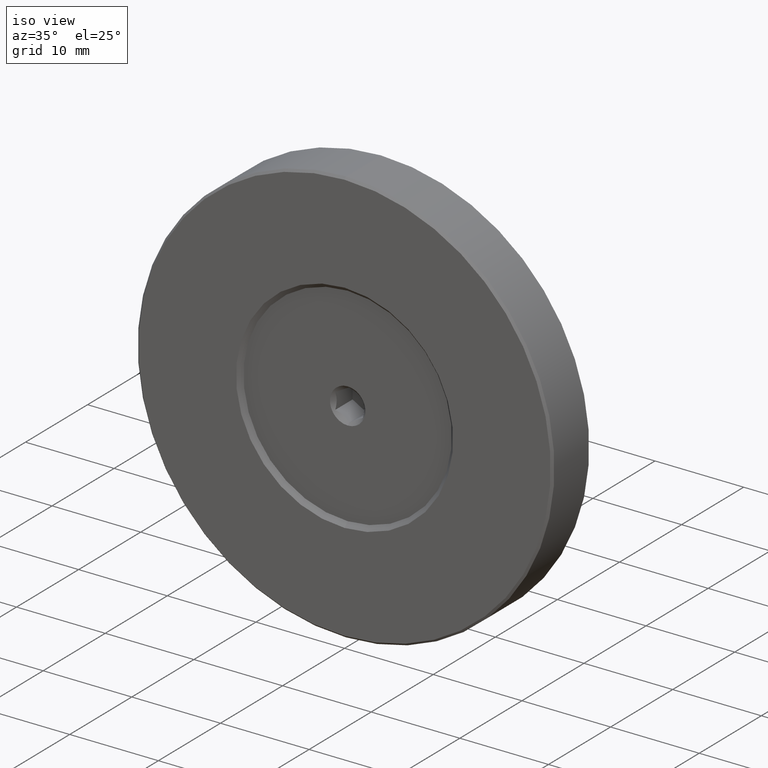
[diagram: clean part render]
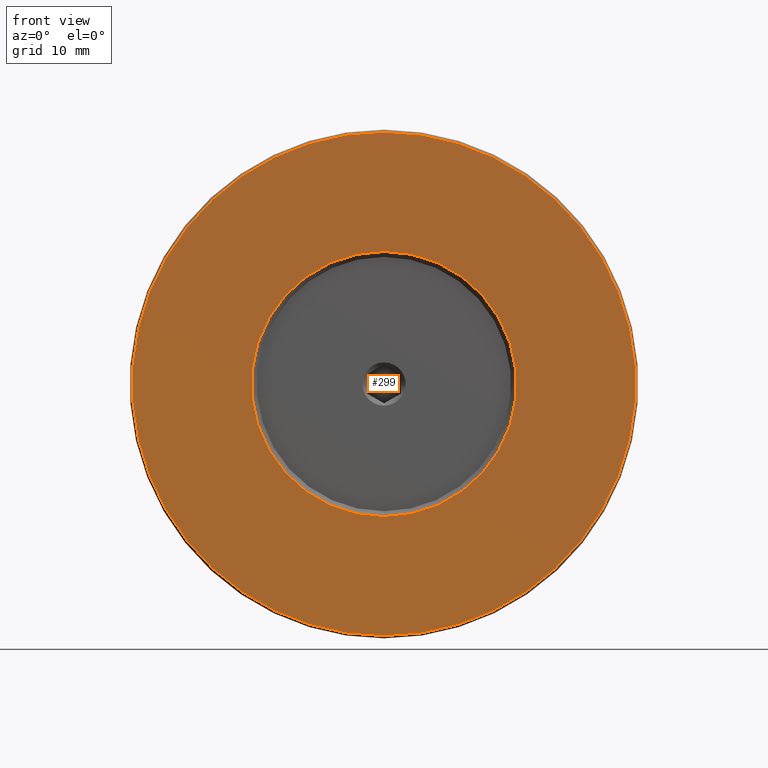
[diagram: tour spotlight — one face highlighted and labeled with its STEP entity id]
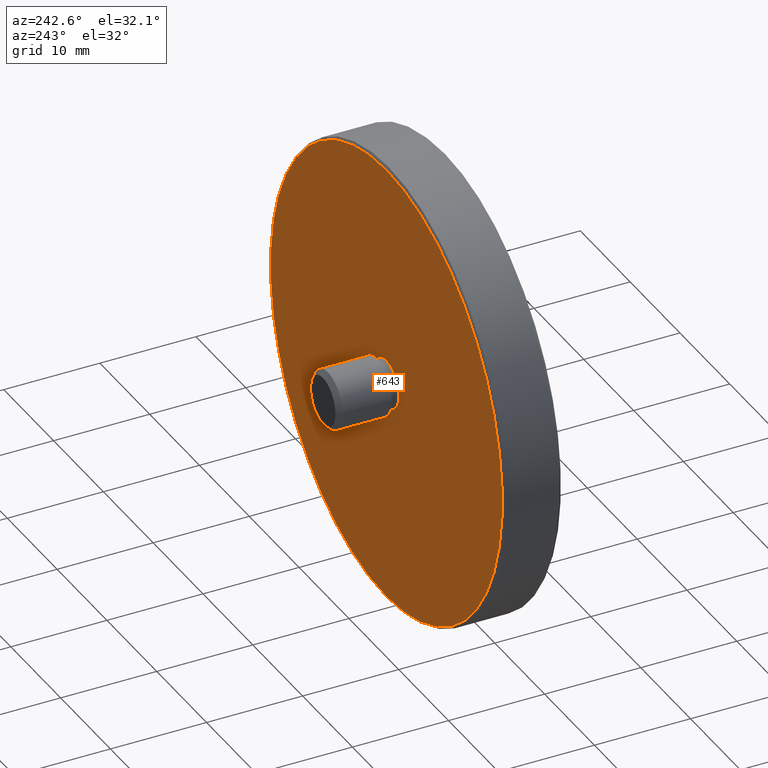
[diagram: tour spotlight — one face highlighted and labeled with its STEP entity id]
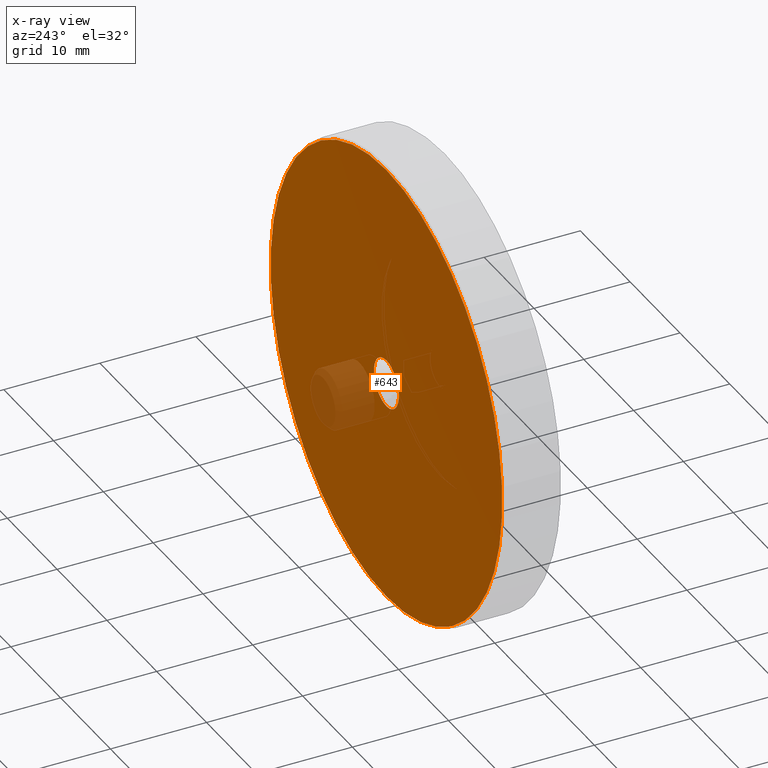
[diagram: x-ray of the same camera — body ghosted, this tour face saturated]
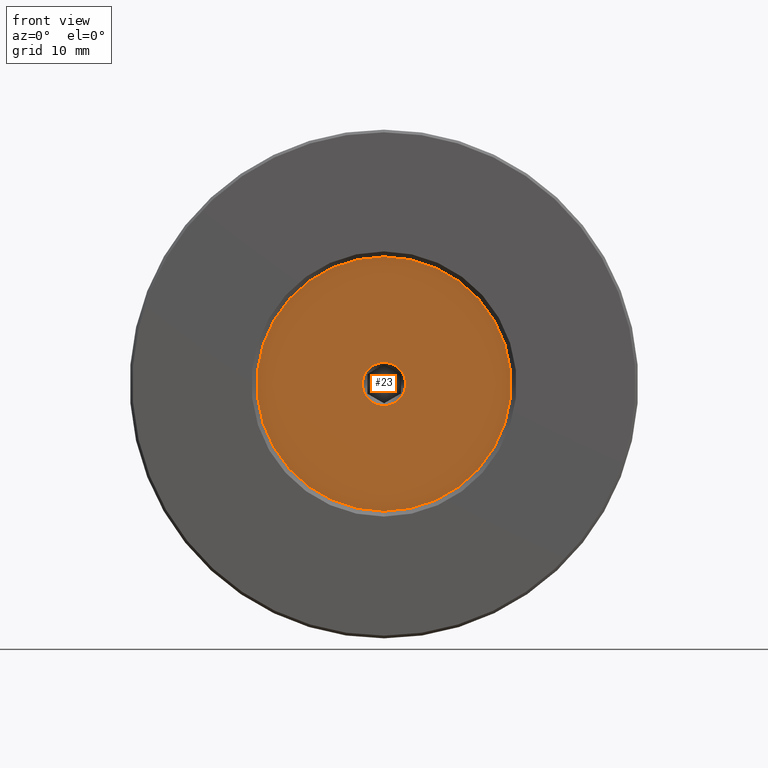
[diagram: tour spotlight — one face highlighted and labeled with its STEP entity id]
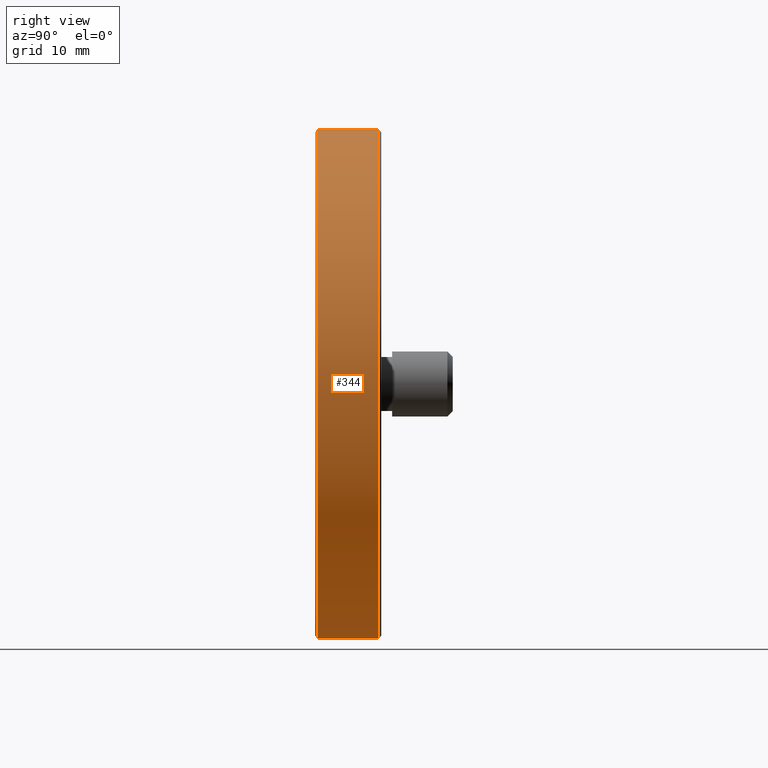
[diagram: tour spotlight — one face highlighted and labeled with its STEP entity id]
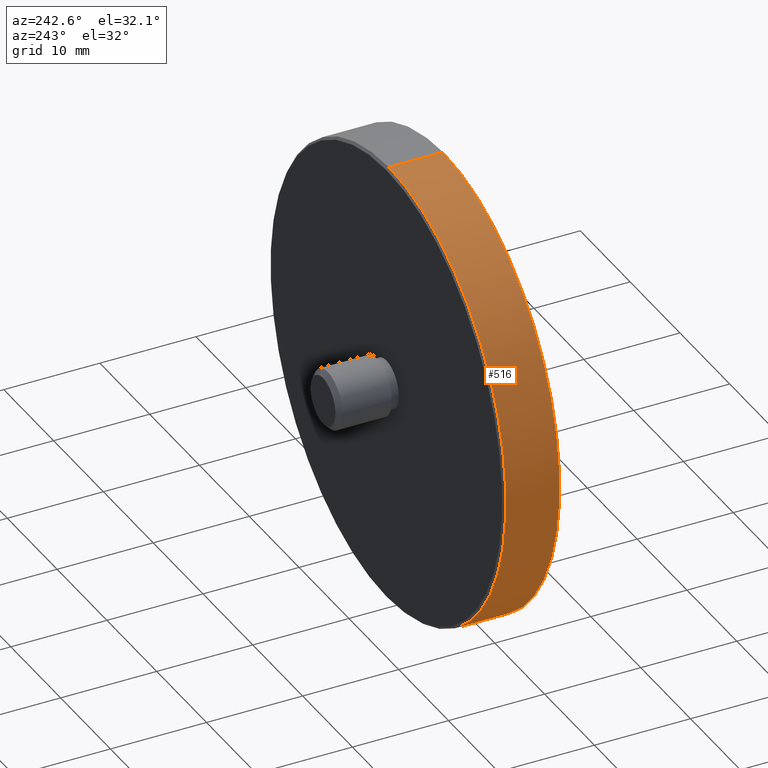
[diagram: tour spotlight — one face highlighted and labeled with its STEP entity id]
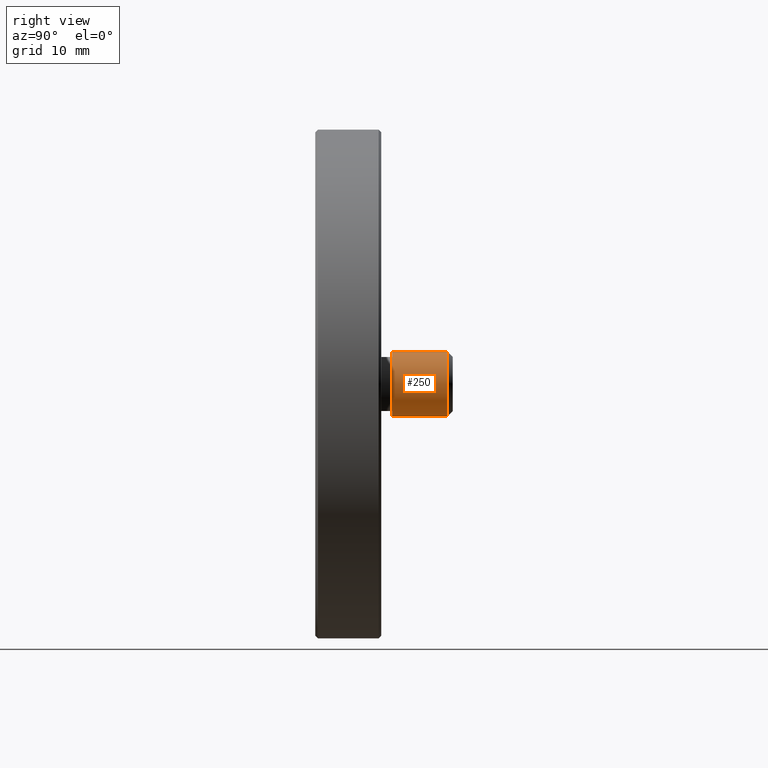
[diagram: tour spotlight — one face highlighted and labeled with its STEP entity id]
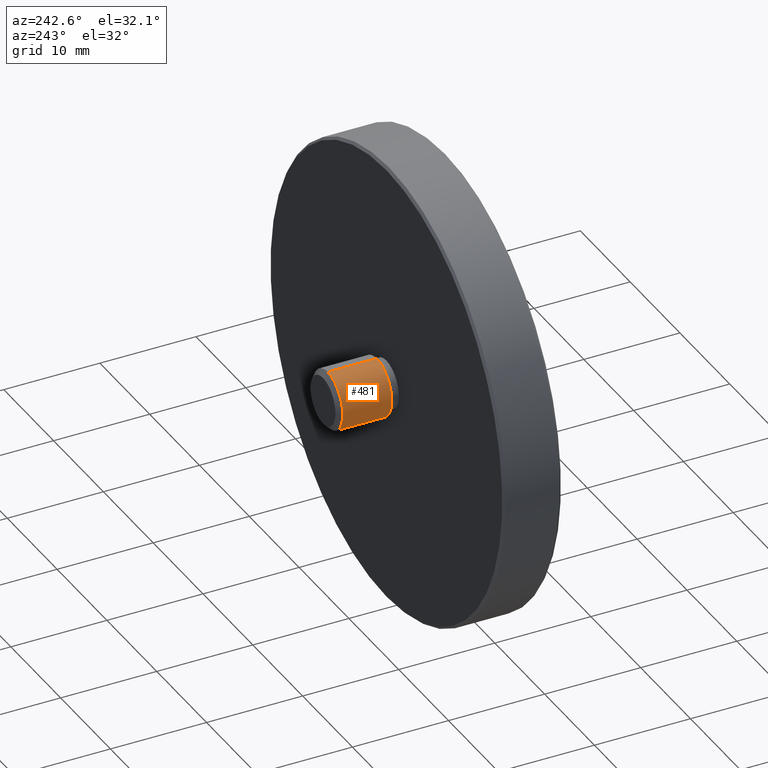
[diagram: tour spotlight — one face highlighted and labeled with its STEP entity id]
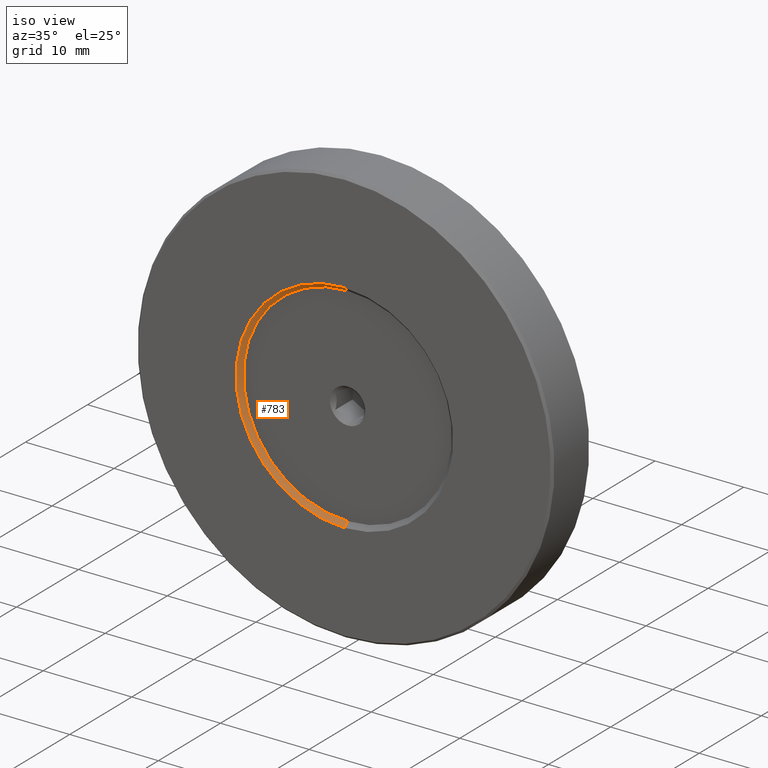
[diagram: tour spotlight — one face highlighted and labeled with its STEP entity id]
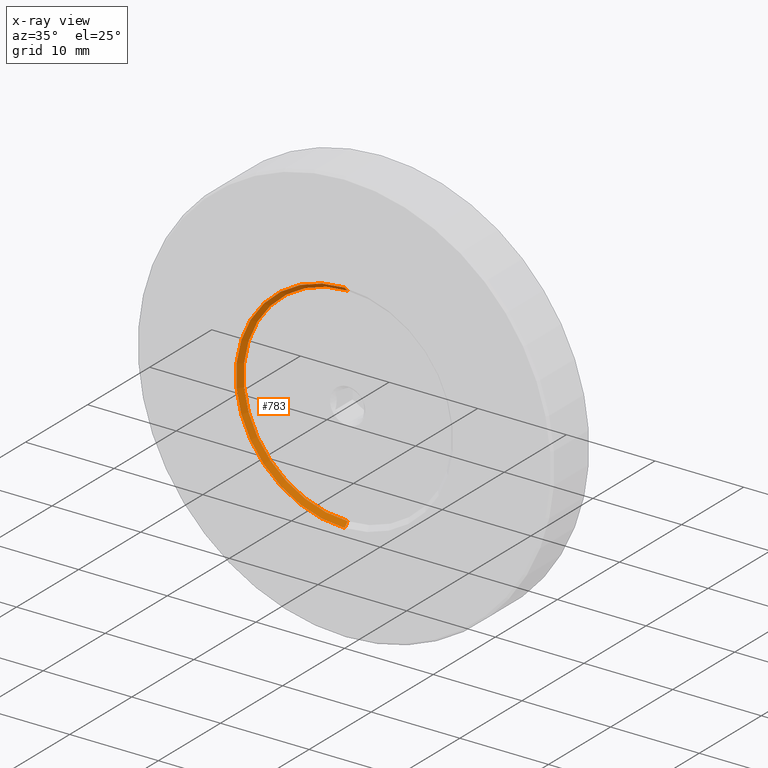
[diagram: x-ray of the same camera — body ghosted, this tour face saturated]
A machine part: a face-by-face anatomy tour. The part has 28 B-rep faces; the first image is the clean iso view, then the 8 largest visible faces are spotlighted one at a time (largest first), each with its STEP entity span.

Face 1 — front view, entity #299. In plain terms, the highlighted planar face has unit normal (0, 1, 0).
Definition (entity closure, byte-faithful):
#6 = CARTESIAN_POINT ( 'NONE',  ( 0.000000000000000000, 0.000000000000000000, -12.25000000000001066 ) ) ;
#32 = EDGE_CURVE ( 'NONE', #456, #246, #113, .T. ) ;
#93 = DIRECTION ( 'NONE',  ( 0.000000000000000000, 0.000000000000000000, 1.000000000000000000 ) ) ;
#95 = AXIS2_PLACEMENT_3D ( 'NONE', #219, #101, #500 ) ;
#101 = DIRECTION ( 'NONE',  ( 0.000000000000000000, 1.000000000000000000, 0.000000000000000000 ) ) ;
#113 = CIRCLE ( 'NONE', #507, 23.24999999999999645 ) ;
#125 = VERTEX_POINT ( 'NONE', #413 ) ;
#132 = DIRECTION ( 'NONE',  ( 0.000000000000000000, 1.000000000000000000, 0.000000000000000000 ) ) ;
#142 = CIRCLE ( 'NONE', #403, 12.25000000000001066 ) ;
#147 = DIRECTION ( 'NONE',  ( -0.000000000000000000, -1.000000000000000000, -0.000000000000000000 ) ) ;
#169 = CARTESIAN_POINT ( 'NONE',  ( 2.862611893006937638E-15, 0.000000000000000000, -23.24999999999999645 ) ) ;
#211 = CARTESIAN_POINT ( 'NONE',  ( 0.000000000000000000, 0.000000000000000000, 0.000000000000000000 ) ) ;
#219 = CARTESIAN_POINT ( 'NONE',  ( 0.000000000000000000, 0.000000000000000000, 0.000000000000000000 ) ) ;
#228 = EDGE_CURVE ( 'NONE', #125, #309, #142, .T. ) ;
#230 = EDGE_LOOP ( 'NONE', ( #720, #237 ) ) ;
#237 = ORIENTED_EDGE ( 'NONE', *, *, #228, .T. ) ;
#246 = VERTEX_POINT ( 'NONE', #169 ) ;
#251 = EDGE_LOOP ( 'NONE', ( #414, #833 ) ) ;
#262 = FACE_BOUND ( 'NONE', #230, .T. ) ;
#265 = DIRECTION ( 'NONE',  ( 0.000000000000000000, 0.000000000000000000, 1.000000000000000000 ) ) ;
#271 = EDGE_CURVE ( 'NONE', #246, #456, #645, .T. ) ;
#276 = CIRCLE ( 'NONE', #95, 12.25000000000001066 ) ;
#286 = AXIS2_PLACEMENT_3D ( 'NONE', #211, #460, #847 ) ;
#299 = ADVANCED_FACE ( 'NONE', ( #262, #657 ), #725, .F. ) ;
#309 = VERTEX_POINT ( 'NONE', #6 ) ;
#312 = CARTESIAN_POINT ( 'NONE',  ( 0.000000000000000000, 0.000000000000000000, 23.24999999999999645 ) ) ;
#403 = AXIS2_PLACEMENT_3D ( 'NONE', #754, #701, #93 ) ;
#413 = CARTESIAN_POINT ( 'NONE',  ( 1.500192328955509115E-15, 0.000000000000000000, 12.25000000000001066 ) ) ;
#414 = ORIENTED_EDGE ( 'NONE', *, *, #32, .T. ) ;
#417 = AXIS2_PLACEMENT_3D ( 'NONE', #593, #132, #598 ) ;
#419 = EDGE_CURVE ( 'NONE', #309, #125, #276, .T. ) ;
#456 = VERTEX_POINT ( 'NONE', #312 ) ;
#460 = DIRECTION ( 'NONE',  ( -0.000000000000000000, -1.000000000000000000, -0.000000000000000000 ) ) ;
#500 = DIRECTION ( 'NONE',  ( 0.000000000000000000, 0.000000000000000000, 1.000000000000000000 ) ) ;
#507 = AXIS2_PLACEMENT_3D ( 'NONE', #651, #147, #265 ) ;
#593 = CARTESIAN_POINT ( 'NONE',  ( 0.000000000000000000, 0.000000000000000000, 0.000000000000000000 ) ) ;
#598 = DIRECTION ( 'NONE',  ( 0.000000000000000000, -0.000000000000000000, 1.000000000000000000 ) ) ;
#645 = CIRCLE ( 'NONE', #286, 23.24999999999999645 ) ;
#651 = CARTESIAN_POINT ( 'NONE',  ( 0.000000000000000000, 0.000000000000000000, 0.000000000000000000 ) ) ;
#657 = FACE_OUTER_BOUND ( 'NONE', #251, .T. ) ;
#701 = DIRECTION ( 'NONE',  ( 0.000000000000000000, 1.000000000000000000, 0.000000000000000000 ) ) ;
#720 = ORIENTED_EDGE ( 'NONE', *, *, #419, .T. ) ;
#725 = PLANE ( 'NONE',  #417 ) ;
#754 = CARTESIAN_POINT ( 'NONE',  ( 0.000000000000000000, 0.000000000000000000, 0.000000000000000000 ) ) ;
#833 = ORIENTED_EDGE ( 'NONE', *, *, #271, .T. ) ;
#847 = DIRECTION ( 'NONE',  ( 0.000000000000000000, 0.000000000000000000, 1.000000000000000000 ) ) ;

Face 2 — auxiliary view, entity #643. An x-ray twin of the same camera follows (body ghosted, this face saturated) — the face is partly hidden behind the body. In plain terms, the highlighted planar face has unit normal (0, 1, 0).
Definition (entity closure, byte-faithful):
#7 = VERTEX_POINT ( 'NONE', #331 ) ;
#12 = EDGE_LOOP ( 'NONE', ( #714, #117 ) ) ;
#22 = CARTESIAN_POINT ( 'NONE',  ( 0.000000000000000000, 6.099999999999999645, 0.000000000000000000 ) ) ;
#39 = AXIS2_PLACEMENT_3D ( 'NONE', #697, #227, #86 ) ;
#86 = DIRECTION ( 'NONE',  ( 0.000000000000000000, -0.000000000000000000, 1.000000000000000000 ) ) ;
#117 = ORIENTED_EDGE ( 'NONE', *, *, #774, .T. ) ;
#119 = VERTEX_POINT ( 'NONE', #217 ) ;
#217 = CARTESIAN_POINT ( 'NONE',  ( 0.000000000000000000, 6.099999999999999645, -23.24999999999999289 ) ) ;
#227 = DIRECTION ( 'NONE',  ( 0.000000000000000000, 1.000000000000000000, 0.000000000000000000 ) ) ;
#231 = CARTESIAN_POINT ( 'NONE',  ( 0.000000000000000000, 6.099999999999999645, 0.000000000000000000 ) ) ;
#259 = EDGE_CURVE ( 'NONE', #582, #7, #662, .T. ) ;
#260 = CIRCLE ( 'NONE', #574, 2.500000000000000444 ) ;
#298 = DIRECTION ( 'NONE',  ( 0.000000000000000000, 0.000000000000000000, 1.000000000000000000 ) ) ;
#325 = EDGE_CURVE ( 'NONE', #7, #582, #260, .T. ) ;
#327 = DIRECTION ( 'NONE',  ( 0.000000000000000000, 1.000000000000000000, 0.000000000000000000 ) ) ;
#331 = CARTESIAN_POINT ( 'NONE',  ( 3.061616997868383634E-16, 6.099999999999999645, 2.500000000000000444 ) ) ;
#339 = DIRECTION ( 'NONE',  ( 0.000000000000000000, 1.000000000000000000, 0.000000000000000000 ) ) ;
#347 = CARTESIAN_POINT ( 'NONE',  ( 2.862611893006937244E-15, 6.099999999999999645, 23.24999999999999289 ) ) ;
#387 = EDGE_CURVE ( 'NONE', #119, #569, #485, .T. ) ;
#431 = AXIS2_PLACEMENT_3D ( 'NONE', #22, #687, #298 ) ;
#479 = EDGE_LOOP ( 'NONE', ( #772, #539 ) ) ;
#485 = CIRCLE ( 'NONE', #760, 23.24999999999999289 ) ;
#508 = CIRCLE ( 'NONE', #431, 23.24999999999999289 ) ;
#518 = DIRECTION ( 'NONE',  ( 0.000000000000000000, 0.000000000000000000, 1.000000000000000000 ) ) ;
#531 = CARTESIAN_POINT ( 'NONE',  ( 0.000000000000000000, 6.099999999999999645, 0.000000000000000000 ) ) ;
#539 = ORIENTED_EDGE ( 'NONE', *, *, #325, .F. ) ;
#547 = DIRECTION ( 'NONE',  ( 0.000000000000000000, 0.000000000000000000, 1.000000000000000000 ) ) ;
#569 = VERTEX_POINT ( 'NONE', #347 ) ;
#574 = AXIS2_PLACEMENT_3D ( 'NONE', #531, #327, #670 ) ;
#582 = VERTEX_POINT ( 'NONE', #606 ) ;
#603 = CARTESIAN_POINT ( 'NONE',  ( 0.000000000000000000, 6.099999999999999645, 0.000000000000000000 ) ) ;
#606 = CARTESIAN_POINT ( 'NONE',  ( 0.000000000000000000, 6.099999999999999645, -2.500000000000000444 ) ) ;
#615 = PLANE ( 'NONE',  #39 ) ;
#643 = ADVANCED_FACE ( 'NONE', ( #667, #806 ), #615, .T. ) ;
#662 = CIRCLE ( 'NONE', #826, 2.500000000000000444 ) ;
#667 = FACE_OUTER_BOUND ( 'NONE', #12, .T. ) ;
#670 = DIRECTION ( 'NONE',  ( 0.000000000000000000, 0.000000000000000000, 1.000000000000000000 ) ) ;
#687 = DIRECTION ( 'NONE',  ( 0.000000000000000000, 1.000000000000000000, 0.000000000000000000 ) ) ;
#697 = CARTESIAN_POINT ( 'NONE',  ( 0.000000000000000000, 6.099999999999999645, 0.000000000000000000 ) ) ;
#714 = ORIENTED_EDGE ( 'NONE', *, *, #387, .T. ) ;
#745 = DIRECTION ( 'NONE',  ( 0.000000000000000000, 1.000000000000000000, 0.000000000000000000 ) ) ;
#760 = AXIS2_PLACEMENT_3D ( 'NONE', #231, #745, #547 ) ;
#772 = ORIENTED_EDGE ( 'NONE', *, *, #259, .F. ) ;
#774 = EDGE_CURVE ( 'NONE', #569, #119, #508, .T. ) ;
#806 = FACE_BOUND ( 'NONE', #479, .T. ) ;
#826 = AXIS2_PLACEMENT_3D ( 'NONE', #603, #339, #518 ) ;

Face 3 — front view, entity #23. In plain terms, the highlighted planar face has unit normal (0, -1, 0).
Definition (entity closure, byte-faithful):
#1 = DIRECTION ( 'NONE',  ( 0.000000000000000000, -1.000000000000000000, 0.000000000000000000 ) ) ;
#4 = DIRECTION ( 'NONE',  ( 0.000000000000000000, -0.000000000000000000, -1.000000000000000000 ) ) ;
#23 = ADVANCED_FACE ( 'NONE', ( #76, #842 ), #385, .T. ) ;
#49 = VERTEX_POINT ( 'NONE', #65 ) ;
#58 = ORIENTED_EDGE ( 'NONE', *, *, #685, .F. ) ;
#65 = CARTESIAN_POINT ( 'NONE',  ( 2.449293598294706414E-16, 0.5000000000000000000, 2.000000000000000000 ) ) ;
#72 = EDGE_CURVE ( 'NONE', #766, #368, #234, .T. ) ;
#76 = FACE_BOUND ( 'NONE', #316, .T. ) ;
#98 = CARTESIAN_POINT ( 'NONE',  ( 1.469576158976824736E-15, 0.5000000000000000000, 11.75000000000000178 ) ) ;
#99 = CARTESIAN_POINT ( 'NONE',  ( 0.000000000000000000, 0.5000000000000000000, -11.75000000000000178 ) ) ;
#103 = CARTESIAN_POINT ( 'NONE',  ( 0.000000000000000000, 0.5000000000000000000, 0.000000000000000000 ) ) ;
#131 = DIRECTION ( 'NONE',  ( 0.000000000000000000, -1.000000000000000000, 0.000000000000000000 ) ) ;
#159 = AXIS2_PLACEMENT_3D ( 'NONE', #103, #430, #425 ) ;
#234 = CIRCLE ( 'NONE', #549, 11.75000000000000178 ) ;
#235 = CIRCLE ( 'NONE', #159, 2.000000000000000000 ) ;
#242 = ORIENTED_EDGE ( 'NONE', *, *, #358, .F. ) ;
#288 = CIRCLE ( 'NONE', #631, 11.75000000000000178 ) ;
#308 = CARTESIAN_POINT ( 'NONE',  ( 0.000000000000000000, 0.5000000000000000000, -2.000000000000000000 ) ) ;
#316 = EDGE_LOOP ( 'NONE', ( #58, #242 ) ) ;
#356 = DIRECTION ( 'NONE',  ( 0.000000000000000000, -1.000000000000000000, 0.000000000000000000 ) ) ;
#358 = EDGE_CURVE ( 'NONE', #49, #452, #429, .T. ) ;
#368 = VERTEX_POINT ( 'NONE', #98 ) ;
#385 = PLANE ( 'NONE',  #588 ) ;
#425 = DIRECTION ( 'NONE',  ( 0.000000000000000000, 0.000000000000000000, -1.000000000000000000 ) ) ;
#429 = CIRCLE ( 'NONE', #537, 2.000000000000000000 ) ;
#430 = DIRECTION ( 'NONE',  ( 0.000000000000000000, -1.000000000000000000, 0.000000000000000000 ) ) ;
#452 = VERTEX_POINT ( 'NONE', #308 ) ;
#466 = CARTESIAN_POINT ( 'NONE',  ( 0.000000000000000000, 0.5000000000000000000, 0.000000000000000000 ) ) ;
#520 = CARTESIAN_POINT ( 'NONE',  ( 0.000000000000000000, 0.5000000000000000000, 0.000000000000000000 ) ) ;
#527 = DIRECTION ( 'NONE',  ( 0.000000000000000000, 0.000000000000000000, -1.000000000000000000 ) ) ;
#537 = AXIS2_PLACEMENT_3D ( 'NONE', #733, #1, #527 ) ;
#549 = AXIS2_PLACEMENT_3D ( 'NONE', #520, #131, #584 ) ;
#584 = DIRECTION ( 'NONE',  ( 0.000000000000000000, 0.000000000000000000, -1.000000000000000000 ) ) ;
#588 = AXIS2_PLACEMENT_3D ( 'NONE', #466, #795, #4 ) ;
#600 = EDGE_LOOP ( 'NONE', ( #830, #837 ) ) ;
#631 = AXIS2_PLACEMENT_3D ( 'NONE', #820, #356, #748 ) ;
#685 = EDGE_CURVE ( 'NONE', #452, #49, #235, .T. ) ;
#724 = EDGE_CURVE ( 'NONE', #368, #766, #288, .T. ) ;
#733 = CARTESIAN_POINT ( 'NONE',  ( 0.000000000000000000, 0.5000000000000000000, 0.000000000000000000 ) ) ;
#748 = DIRECTION ( 'NONE',  ( 0.000000000000000000, 0.000000000000000000, -1.000000000000000000 ) ) ;
#766 = VERTEX_POINT ( 'NONE', #99 ) ;
#795 = DIRECTION ( 'NONE',  ( 0.000000000000000000, -1.000000000000000000, 0.000000000000000000 ) ) ;
#820 = CARTESIAN_POINT ( 'NONE',  ( 0.000000000000000000, 0.5000000000000000000, 0.000000000000000000 ) ) ;
#830 = ORIENTED_EDGE ( 'NONE', *, *, #72, .T. ) ;
#837 = ORIENTED_EDGE ( 'NONE', *, *, #724, .T. ) ;
#842 = FACE_OUTER_BOUND ( 'NONE', #600, .T. ) ;

Face 4 — right view, entity #344. In plain terms, the highlighted cylindrical surface (partial cylindrical patch) has radius 23.5 mm, axis along (-0, -1, -0).
Definition (entity closure, byte-faithful):
#5 = EDGE_CURVE ( 'NONE', #668, #128, #453, .T. ) ;
#30 = LINE ( 'NONE', #635, #813 ) ;
#34 = EDGE_LOOP ( 'NONE', ( #190, #768, #741, #304 ) ) ;
#53 = AXIS2_PLACEMENT_3D ( 'NONE', #796, #78, #205 ) ;
#69 = AXIS2_PLACEMENT_3D ( 'NONE', #726, #794, #84 ) ;
#78 = DIRECTION ( 'NONE',  ( -0.000000000000000000, -1.000000000000000000, -0.000000000000000000 ) ) ;
#80 = DIRECTION ( 'NONE',  ( -0.000000000000000000, 1.000000000000000000, -0.000000000000000000 ) ) ;
#84 = DIRECTION ( 'NONE',  ( 0.000000000000000000, 0.000000000000000000, 1.000000000000000000 ) ) ;
#128 = VERTEX_POINT ( 'NONE', #546 ) ;
#144 = VERTEX_POINT ( 'NONE', #416 ) ;
#182 = AXIS2_PLACEMENT_3D ( 'NONE', #587, #80, #660 ) ;
#190 = ORIENTED_EDGE ( 'NONE', *, *, #622, .T. ) ;
#205 = DIRECTION ( 'NONE',  ( 0.000000000000000000, 0.000000000000000000, -1.000000000000000000 ) ) ;
#269 = CARTESIAN_POINT ( 'NONE',  ( 2.877919977996279531E-15, 6.099999999999999645, 23.49999999999999645 ) ) ;
#274 = FACE_OUTER_BOUND ( 'NONE', #34, .T. ) ;
#304 = ORIENTED_EDGE ( 'NONE', *, *, #423, .F. ) ;
#344 = ADVANCED_FACE ( 'NONE', ( #274 ), #585, .T. ) ;
#408 = CARTESIAN_POINT ( 'NONE',  ( 0.000000000000000000, 5.849999999999992539, -23.49999999999999645 ) ) ;
#416 = CARTESIAN_POINT ( 'NONE',  ( 0.000000000000000000, 0.2500000000000002220, -23.49999999999999645 ) ) ;
#423 = EDGE_CURVE ( 'NONE', #629, #144, #30, .T. ) ;
#453 = LINE ( 'NONE', #269, #850 ) ;
#546 = CARTESIAN_POINT ( 'NONE',  ( 2.877919977996279531E-15, 0.2500000000000002220, 23.49999999999999645 ) ) ;
#585 = CYLINDRICAL_SURFACE ( 'NONE', #53, 23.49999999999999645 ) ;
#587 = CARTESIAN_POINT ( 'NONE',  ( 0.000000000000000000, 0.2500000000000002220, 0.000000000000000000 ) ) ;
#590 = CIRCLE ( 'NONE', #182, 23.49999999999999645 ) ;
#602 = DIRECTION ( 'NONE',  ( -0.000000000000000000, -1.000000000000000000, -0.000000000000000000 ) ) ;
#622 = EDGE_CURVE ( 'NONE', #629, #668, #679, .T. ) ;
#623 = CARTESIAN_POINT ( 'NONE',  ( 2.877919977996279531E-15, 5.849999999999992539, 23.49999999999999645 ) ) ;
#629 = VERTEX_POINT ( 'NONE', #408 ) ;
#633 = EDGE_CURVE ( 'NONE', #128, #144, #590, .T. ) ;
#635 = CARTESIAN_POINT ( 'NONE',  ( 0.000000000000000000, 6.099999999999999645, -23.49999999999999645 ) ) ;
#660 = DIRECTION ( 'NONE',  ( 0.000000000000000000, 0.000000000000000000, 1.000000000000000000 ) ) ;
#668 = VERTEX_POINT ( 'NONE', #623 ) ;
#679 = CIRCLE ( 'NONE', #69, 23.49999999999999645 ) ;
#699 = DIRECTION ( 'NONE',  ( -0.000000000000000000, -1.000000000000000000, -0.000000000000000000 ) ) ;
#726 = CARTESIAN_POINT ( 'NONE',  ( 0.000000000000000000, 5.849999999999992539, 0.000000000000000000 ) ) ;
#741 = ORIENTED_EDGE ( 'NONE', *, *, #633, .T. ) ;
#768 = ORIENTED_EDGE ( 'NONE', *, *, #5, .T. ) ;
#794 = DIRECTION ( 'NONE',  ( 0.000000000000000000, -1.000000000000000000, 0.000000000000000000 ) ) ;
#796 = CARTESIAN_POINT ( 'NONE',  ( 0.000000000000000000, 6.099999999999999645, 0.000000000000000000 ) ) ;
#813 = VECTOR ( 'NONE', #699, 1000.000000000000000 ) ;
#850 = VECTOR ( 'NONE', #602, 1000.000000000000000 ) ;

Face 5 — auxiliary view, entity #516. In plain terms, the highlighted cylindrical surface (partial cylindrical patch) has radius 23.5 mm, axis along (-0, -1, -0).
Definition (entity closure, byte-faithful):
#5 = EDGE_CURVE ( 'NONE', #668, #128, #453, .T. ) ;
#30 = LINE ( 'NONE', #635, #813 ) ;
#47 = CYLINDRICAL_SURFACE ( 'NONE', #497, 23.49999999999999645 ) ;
#75 = DIRECTION ( 'NONE',  ( -0.000000000000000000, -1.000000000000000000, -0.000000000000000000 ) ) ;
#114 = AXIS2_PLACEMENT_3D ( 'NONE', #292, #811, #614 ) ;
#128 = VERTEX_POINT ( 'NONE', #546 ) ;
#144 = VERTEX_POINT ( 'NONE', #416 ) ;
#178 = FACE_OUTER_BOUND ( 'NONE', #263, .T. ) ;
#189 = ORIENTED_EDGE ( 'NONE', *, *, #423, .T. ) ;
#192 = CIRCLE ( 'NONE', #443, 23.49999999999999645 ) ;
#203 = CARTESIAN_POINT ( 'NONE',  ( 0.000000000000000000, 6.099999999999999645, 0.000000000000000000 ) ) ;
#257 = DIRECTION ( 'NONE',  ( 0.000000000000000000, 0.000000000000000000, 1.000000000000000000 ) ) ;
#263 = EDGE_LOOP ( 'NONE', ( #759, #428, #189, #514 ) ) ;
#269 = CARTESIAN_POINT ( 'NONE',  ( 2.877919977996279531E-15, 6.099999999999999645, 23.49999999999999645 ) ) ;
#292 = CARTESIAN_POINT ( 'NONE',  ( 0.000000000000000000, 5.849999999999992539, 0.000000000000000000 ) ) ;
#337 = DIRECTION ( 'NONE',  ( -0.000000000000000000, 1.000000000000000000, -0.000000000000000000 ) ) ;
#395 = EDGE_CURVE ( 'NONE', #668, #629, #538, .T. ) ;
#408 = CARTESIAN_POINT ( 'NONE',  ( 0.000000000000000000, 5.849999999999992539, -23.49999999999999645 ) ) ;
#416 = CARTESIAN_POINT ( 'NONE',  ( 0.000000000000000000, 0.2500000000000002220, -23.49999999999999645 ) ) ;
#423 = EDGE_CURVE ( 'NONE', #629, #144, #30, .T. ) ;
#428 = ORIENTED_EDGE ( 'NONE', *, *, #395, .T. ) ;
#443 = AXIS2_PLACEMENT_3D ( 'NONE', #799, #337, #257 ) ;
#453 = LINE ( 'NONE', #269, #850 ) ;
#497 = AXIS2_PLACEMENT_3D ( 'NONE', #203, #75, #672 ) ;
#514 = ORIENTED_EDGE ( 'NONE', *, *, #616, .T. ) ;
#516 = ADVANCED_FACE ( 'NONE', ( #178 ), #47, .T. ) ;
#538 = CIRCLE ( 'NONE', #114, 23.49999999999999645 ) ;
#546 = CARTESIAN_POINT ( 'NONE',  ( 2.877919977996279531E-15, 0.2500000000000002220, 23.49999999999999645 ) ) ;
#602 = DIRECTION ( 'NONE',  ( -0.000000000000000000, -1.000000000000000000, -0.000000000000000000 ) ) ;
#614 = DIRECTION ( 'NONE',  ( 0.000000000000000000, 0.000000000000000000, 1.000000000000000000 ) ) ;
#616 = EDGE_CURVE ( 'NONE', #144, #128, #192, .T. ) ;
#623 = CARTESIAN_POINT ( 'NONE',  ( 2.877919977996279531E-15, 5.849999999999992539, 23.49999999999999645 ) ) ;
#629 = VERTEX_POINT ( 'NONE', #408 ) ;
#635 = CARTESIAN_POINT ( 'NONE',  ( 0.000000000000000000, 6.099999999999999645, -23.49999999999999645 ) ) ;
#668 = VERTEX_POINT ( 'NONE', #623 ) ;
#672 = DIRECTION ( 'NONE',  ( 0.000000000000000000, 0.000000000000000000, -1.000000000000000000 ) ) ;
#699 = DIRECTION ( 'NONE',  ( -0.000000000000000000, -1.000000000000000000, -0.000000000000000000 ) ) ;
#759 = ORIENTED_EDGE ( 'NONE', *, *, #5, .F. ) ;
#799 = CARTESIAN_POINT ( 'NONE',  ( 0.000000000000000000, 0.2500000000000002220, 0.000000000000000000 ) ) ;
#811 = DIRECTION ( 'NONE',  ( 0.000000000000000000, -1.000000000000000000, 0.000000000000000000 ) ) ;
#813 = VECTOR ( 'NONE', #699, 1000.000000000000000 ) ;
#850 = VECTOR ( 'NONE', #602, 1000.000000000000000 ) ;

Face 6 — right view, entity #250. In plain terms, the highlighted cylindrical surface (edge-blend (fillet) strip) has radius 3 mm, axis along (-0, -1, -0).
Definition (entity closure, byte-faithful):
#21 = LINE ( 'NONE', #365, #333 ) ;
#70 = CARTESIAN_POINT ( 'NONE',  ( 3.673940397442060361E-16, 7.099999999999999645, 3.000000000000000444 ) ) ;
#73 = DIRECTION ( 'NONE',  ( -0.000000000000000000, -1.000000000000000000, -0.000000000000000000 ) ) ;
#82 = ORIENTED_EDGE ( 'NONE', *, *, #821, .T. ) ;
#88 = CARTESIAN_POINT ( 'NONE',  ( 0.000000000000000000, 12.19999999999999041, -3.000000000000000444 ) ) ;
#158 = CIRCLE ( 'NONE', #332, 3.000000000000000444 ) ;
#161 = DIRECTION ( 'NONE',  ( -0.000000000000000000, -1.000000000000000000, -0.000000000000000000 ) ) ;
#163 = CARTESIAN_POINT ( 'NONE',  ( 3.673940397442060361E-16, 12.19999999999999041, 3.000000000000000444 ) ) ;
#179 = VECTOR ( 'NONE', #239, 1000.000000000000000 ) ;
#181 = AXIS2_PLACEMENT_3D ( 'NONE', #803, #73, #200 ) ;
#200 = DIRECTION ( 'NONE',  ( 0.000000000000000000, 0.000000000000000000, -1.000000000000000000 ) ) ;
#215 = EDGE_CURVE ( 'NONE', #649, #226, #301, .T. ) ;
#226 = VERTEX_POINT ( 'NONE', #829 ) ;
#229 = DIRECTION ( 'NONE',  ( 0.000000000000000000, 0.000000000000000000, 1.000000000000000000 ) ) ;
#236 = EDGE_CURVE ( 'NONE', #649, #764, #158, .T. ) ;
#239 = DIRECTION ( 'NONE',  ( -0.000000000000000000, -1.000000000000000000, -0.000000000000000000 ) ) ;
#250 = ADVANCED_FACE ( 'NONE', ( #433 ), #694, .T. ) ;
#267 = EDGE_LOOP ( 'NONE', ( #637, #457, #82, #805 ) ) ;
#294 = DIRECTION ( 'NONE',  ( 0.000000000000000000, -1.000000000000000000, 0.000000000000000000 ) ) ;
#301 = LINE ( 'NONE', #564, #179 ) ;
#306 = DIRECTION ( 'NONE',  ( 0.000000000000000000, 0.000000000000000000, 1.000000000000000000 ) ) ;
#332 = AXIS2_PLACEMENT_3D ( 'NONE', #362, #294, #229 ) ;
#333 = VECTOR ( 'NONE', #161, 1000.000000000000000 ) ;
#350 = CIRCLE ( 'NONE', #632, 3.000000000000000444 ) ;
#362 = CARTESIAN_POINT ( 'NONE',  ( 0.000000000000000000, 12.19999999999999041, 0.000000000000000000 ) ) ;
#365 = CARTESIAN_POINT ( 'NONE',  ( 3.673940397442060361E-16, 12.69999999999999929, 3.000000000000000444 ) ) ;
#377 = EDGE_CURVE ( 'NONE', #764, #594, #21, .T. ) ;
#433 = FACE_OUTER_BOUND ( 'NONE', #267, .T. ) ;
#457 = ORIENTED_EDGE ( 'NONE', *, *, #377, .T. ) ;
#564 = CARTESIAN_POINT ( 'NONE',  ( 0.000000000000000000, 12.69999999999999929, -3.000000000000000444 ) ) ;
#594 = VERTEX_POINT ( 'NONE', #70 ) ;
#632 = AXIS2_PLACEMENT_3D ( 'NONE', #719, #715, #306 ) ;
#637 = ORIENTED_EDGE ( 'NONE', *, *, #236, .T. ) ;
#649 = VERTEX_POINT ( 'NONE', #88 ) ;
#694 = CYLINDRICAL_SURFACE ( 'NONE', #181, 3.000000000000000444 ) ;
#715 = DIRECTION ( 'NONE',  ( 0.000000000000000000, 1.000000000000000000, 0.000000000000000000 ) ) ;
#719 = CARTESIAN_POINT ( 'NONE',  ( 0.000000000000000000, 7.099999999999999645, 0.000000000000000000 ) ) ;
#764 = VERTEX_POINT ( 'NONE', #163 ) ;
#803 = CARTESIAN_POINT ( 'NONE',  ( 0.000000000000000000, 12.69999999999999929, 0.000000000000000000 ) ) ;
#805 = ORIENTED_EDGE ( 'NONE', *, *, #215, .F. ) ;
#821 = EDGE_CURVE ( 'NONE', #594, #226, #350, .T. ) ;
#829 = CARTESIAN_POINT ( 'NONE',  ( 0.000000000000000000, 7.099999999999999645, -3.000000000000000444 ) ) ;

Face 7 — auxiliary view, entity #481. In plain terms, the highlighted cylindrical surface (edge-blend (fillet) strip) has radius 3 mm, axis along (-0, -1, -0).
Definition (entity closure, byte-faithful):
#20 = EDGE_CURVE ( 'NONE', #764, #649, #617, .T. ) ;
#21 = LINE ( 'NONE', #365, #333 ) ;
#60 = DIRECTION ( 'NONE',  ( 0.000000000000000000, 0.000000000000000000, 1.000000000000000000 ) ) ;
#70 = CARTESIAN_POINT ( 'NONE',  ( 3.673940397442060361E-16, 7.099999999999999645, 3.000000000000000444 ) ) ;
#88 = CARTESIAN_POINT ( 'NONE',  ( 0.000000000000000000, 12.19999999999999041, -3.000000000000000444 ) ) ;
#111 = DIRECTION ( 'NONE',  ( 0.000000000000000000, 0.000000000000000000, 1.000000000000000000 ) ) ;
#135 = DIRECTION ( 'NONE',  ( 0.000000000000000000, -1.000000000000000000, 0.000000000000000000 ) ) ;
#161 = DIRECTION ( 'NONE',  ( -0.000000000000000000, -1.000000000000000000, -0.000000000000000000 ) ) ;
#163 = CARTESIAN_POINT ( 'NONE',  ( 3.673940397442060361E-16, 12.19999999999999041, 3.000000000000000444 ) ) ;
#179 = VECTOR ( 'NONE', #239, 1000.000000000000000 ) ;
#185 = ORIENTED_EDGE ( 'NONE', *, *, #215, .T. ) ;
#212 = ORIENTED_EDGE ( 'NONE', *, *, #20, .T. ) ;
#215 = EDGE_CURVE ( 'NONE', #649, #226, #301, .T. ) ;
#221 = AXIS2_PLACEMENT_3D ( 'NONE', #471, #135, #60 ) ;
#226 = VERTEX_POINT ( 'NONE', #829 ) ;
#239 = DIRECTION ( 'NONE',  ( -0.000000000000000000, -1.000000000000000000, -0.000000000000000000 ) ) ;
#254 = DIRECTION ( 'NONE',  ( 0.000000000000000000, 0.000000000000000000, -1.000000000000000000 ) ) ;
#301 = LINE ( 'NONE', #564, #179 ) ;
#333 = VECTOR ( 'NONE', #161, 1000.000000000000000 ) ;
#365 = CARTESIAN_POINT ( 'NONE',  ( 3.673940397442060361E-16, 12.69999999999999929, 3.000000000000000444 ) ) ;
#377 = EDGE_CURVE ( 'NONE', #764, #594, #21, .T. ) ;
#381 = FACE_OUTER_BOUND ( 'NONE', #610, .T. ) ;
#386 = AXIS2_PLACEMENT_3D ( 'NONE', #702, #493, #111 ) ;
#434 = EDGE_CURVE ( 'NONE', #226, #594, #851, .T. ) ;
#447 = ORIENTED_EDGE ( 'NONE', *, *, #377, .F. ) ;
#458 = AXIS2_PLACEMENT_3D ( 'NONE', #570, #513, #254 ) ;
#471 = CARTESIAN_POINT ( 'NONE',  ( 0.000000000000000000, 12.19999999999999041, 0.000000000000000000 ) ) ;
#481 = ADVANCED_FACE ( 'NONE', ( #381 ), #708, .T. ) ;
#493 = DIRECTION ( 'NONE',  ( 0.000000000000000000, 1.000000000000000000, 0.000000000000000000 ) ) ;
#498 = ORIENTED_EDGE ( 'NONE', *, *, #434, .T. ) ;
#513 = DIRECTION ( 'NONE',  ( -0.000000000000000000, -1.000000000000000000, -0.000000000000000000 ) ) ;
#564 = CARTESIAN_POINT ( 'NONE',  ( 0.000000000000000000, 12.69999999999999929, -3.000000000000000444 ) ) ;
#570 = CARTESIAN_POINT ( 'NONE',  ( 0.000000000000000000, 12.69999999999999929, 0.000000000000000000 ) ) ;
#594 = VERTEX_POINT ( 'NONE', #70 ) ;
#610 = EDGE_LOOP ( 'NONE', ( #447, #212, #185, #498 ) ) ;
#617 = CIRCLE ( 'NONE', #221, 3.000000000000000444 ) ;
#649 = VERTEX_POINT ( 'NONE', #88 ) ;
#702 = CARTESIAN_POINT ( 'NONE',  ( 0.000000000000000000, 7.099999999999999645, 0.000000000000000000 ) ) ;
#708 = CYLINDRICAL_SURFACE ( 'NONE', #458, 3.000000000000000444 ) ;
#764 = VERTEX_POINT ( 'NONE', #163 ) ;
#829 = CARTESIAN_POINT ( 'NONE',  ( 0.000000000000000000, 7.099999999999999645, -3.000000000000000444 ) ) ;
#851 = CIRCLE ( 'NONE', #386, 3.000000000000000444 ) ;

Face 8 — iso view, entity #783. An x-ray twin of the same camera follows (body ghosted, this face saturated) — the face is partly hidden behind the body. In plain terms, the highlighted conical surface has half-angle 45 deg.
Definition (entity closure, byte-faithful):
#6 = CARTESIAN_POINT ( 'NONE',  ( 0.000000000000000000, 0.000000000000000000, -12.25000000000001066 ) ) ;
#29 = CARTESIAN_POINT ( 'NONE',  ( 0.000000000000000000, 0.5000000000000091038, -11.75000000000000178 ) ) ;
#31 = ORIENTED_EDGE ( 'NONE', *, *, #724, .F. ) ;
#95 = AXIS2_PLACEMENT_3D ( 'NONE', #219, #101, #500 ) ;
#98 = CARTESIAN_POINT ( 'NONE',  ( 1.469576158976824736E-15, 0.5000000000000000000, 11.75000000000000178 ) ) ;
#99 = CARTESIAN_POINT ( 'NONE',  ( 0.000000000000000000, 0.5000000000000000000, -11.75000000000000178 ) ) ;
#101 = DIRECTION ( 'NONE',  ( 0.000000000000000000, 1.000000000000000000, 0.000000000000000000 ) ) ;
#102 = EDGE_LOOP ( 'NONE', ( #31, #445, #712, #435 ) ) ;
#125 = VERTEX_POINT ( 'NONE', #413 ) ;
#162 = LINE ( 'NONE', #29, #222 ) ;
#219 = CARTESIAN_POINT ( 'NONE',  ( 0.000000000000000000, 0.000000000000000000, 0.000000000000000000 ) ) ;
#222 = VECTOR ( 'NONE', #496, 1000.000000000000114 ) ;
#276 = CIRCLE ( 'NONE', #95, 12.25000000000001066 ) ;
#288 = CIRCLE ( 'NONE', #631, 11.75000000000000178 ) ;
#309 = VERTEX_POINT ( 'NONE', #6 ) ;
#319 = AXIS2_PLACEMENT_3D ( 'NONE', #360, #559, #436 ) ;
#356 = DIRECTION ( 'NONE',  ( 0.000000000000000000, -1.000000000000000000, 0.000000000000000000 ) ) ;
#360 = CARTESIAN_POINT ( 'NONE',  ( 0.000000000000000000, 0.5000000000000091038, 0.000000000000000000 ) ) ;
#368 = VERTEX_POINT ( 'NONE', #98 ) ;
#390 = CARTESIAN_POINT ( 'NONE',  ( 1.438959988998140357E-15, 0.5000000000000091038, 11.75000000000000178 ) ) ;
#413 = CARTESIAN_POINT ( 'NONE',  ( 1.500192328955509115E-15, 0.000000000000000000, 12.25000000000001066 ) ) ;
#419 = EDGE_CURVE ( 'NONE', #309, #125, #276, .T. ) ;
#421 = FACE_OUTER_BOUND ( 'NONE', #102, .T. ) ;
#435 = ORIENTED_EDGE ( 'NONE', *, *, #669, .F. ) ;
#436 = DIRECTION ( 'NONE',  ( 0.000000000000000000, 0.000000000000000000, -1.000000000000000000 ) ) ;
#445 = ORIENTED_EDGE ( 'NONE', *, *, #492, .T. ) ;
#492 = EDGE_CURVE ( 'NONE', #368, #125, #583, .T. ) ;
#496 = DIRECTION ( 'NONE',  ( 0.000000000000000000, -0.7071067811865474617, -0.7071067811865474617 ) ) ;
#500 = DIRECTION ( 'NONE',  ( 0.000000000000000000, 0.000000000000000000, 1.000000000000000000 ) ) ;
#559 = DIRECTION ( 'NONE',  ( 0.000000000000000000, -1.000000000000000000, 0.000000000000000000 ) ) ;
#563 = VECTOR ( 'NONE', #650, 1000.000000000000114 ) ;
#583 = LINE ( 'NONE', #390, #563 ) ;
#631 = AXIS2_PLACEMENT_3D ( 'NONE', #820, #356, #748 ) ;
#650 = DIRECTION ( 'NONE',  ( 8.659560562354932858E-17, -0.7071067811865474617, 0.7071067811865474617 ) ) ;
#669 = EDGE_CURVE ( 'NONE', #766, #309, #162, .T. ) ;
#691 = CONICAL_SURFACE ( 'NONE', #319, 11.75000000000000178, 0.7853981633974482790 ) ;
#712 = ORIENTED_EDGE ( 'NONE', *, *, #419, .F. ) ;
#724 = EDGE_CURVE ( 'NONE', #368, #766, #288, .T. ) ;
#748 = DIRECTION ( 'NONE',  ( 0.000000000000000000, 0.000000000000000000, -1.000000000000000000 ) ) ;
#766 = VERTEX_POINT ( 'NONE', #99 ) ;
#783 = ADVANCED_FACE ( 'NONE', ( #421 ), #691, .F. ) ;
#820 = CARTESIAN_POINT ( 'NONE',  ( 0.000000000000000000, 0.5000000000000000000, 0.000000000000000000 ) ) ;